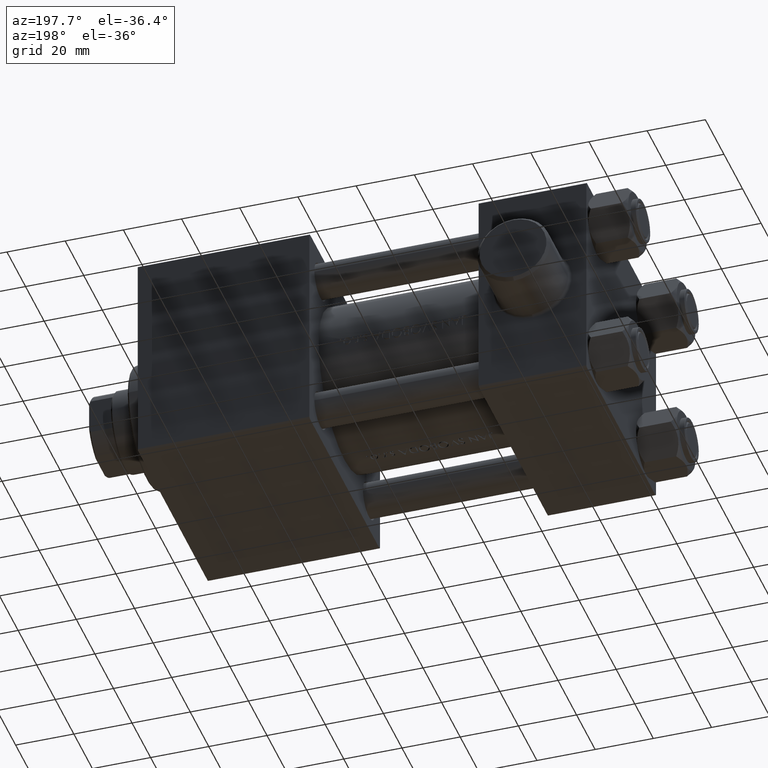
[diagram: clean part render]
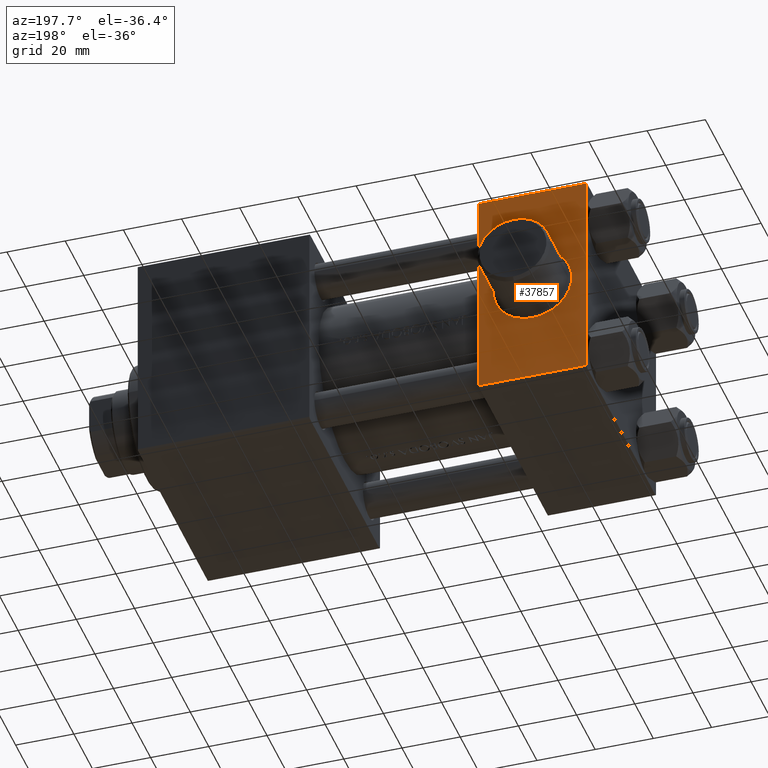
[diagram: same view with one face highlighted and labeled with its STEP entity id]
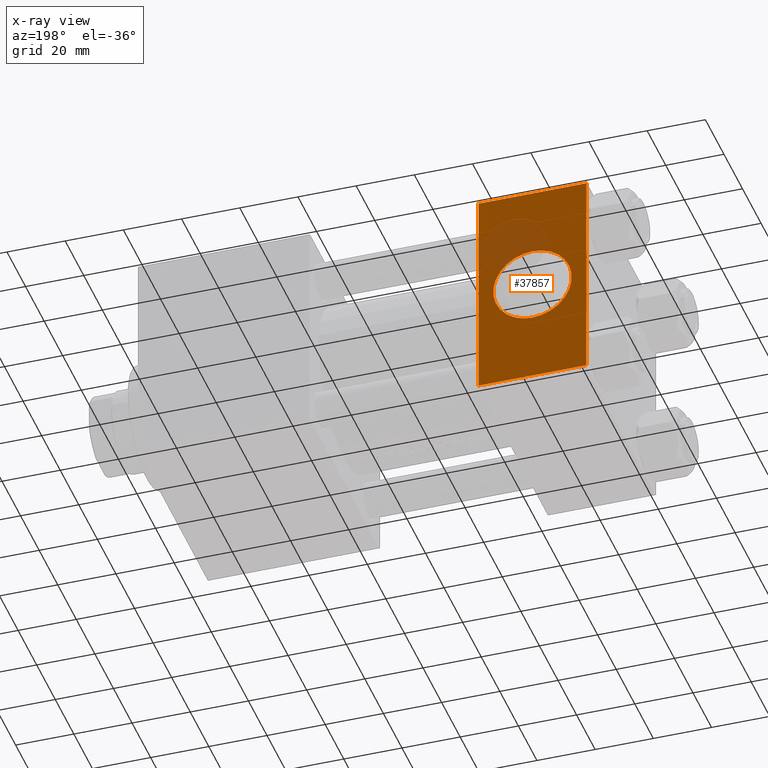
[diagram: x-ray of the same camera — body ghosted, the highlighted face saturated]
A machine part, auxiliary view. The second image highlights one B-rep face of the part: STEP entity #37857.
The next image is the same camera in x-ray: the body ghosted, the highlighted face saturated — about 15% of this face is hidden behind the body in this view.
In plain terms, the highlighted planar face has unit normal (0, 1, 0).
Its self-contained STEP definition (entity closure, byte-faithful):
#1323 = VERTEX_POINT ( 'NONE', #14348 ) ;
#1332 = VERTEX_POINT ( 'NONE', #35418 ) ;
#4882 = CARTESIAN_POINT ( 'NONE',  ( 18.50000000000000000, 37.49999999999999289, -13.50000000000000533 ) ) ;
#4954 = PLANE ( 'NONE',  #22498 ) ;
#6282 = ORIENTED_EDGE ( 'NONE', *, *, #19614, .F. ) ;
#6420 = VERTEX_POINT ( 'NONE', #22360 ) ;
#7531 = CIRCLE ( 'NONE', #41920, 13.50000000000000178 ) ;
#7551 = DIRECTION ( 'NONE',  ( -0.000000000000000000, 1.000000000000000000, 0.000000000000000000 ) ) ;
#7646 = ORIENTED_EDGE ( 'NONE', *, *, #16515, .T. ) ;
#7818 = LINE ( 'NONE', #23003, #35475 ) ;
#8022 = CARTESIAN_POINT ( 'NONE',  ( 37.00000000000000000, 37.49999999999999289, 37.50000000000000000 ) ) ;
#9030 = EDGE_LOOP ( 'NONE', ( #7646, #20046 ) ) ;
#10692 = LINE ( 'NONE', #15118, #10819 ) ;
#10819 = VECTOR ( 'NONE', #29843, 1000.000000000000000 ) ;
#12234 = FACE_BOUND ( 'NONE', #9030, .T. ) ;
#12878 = EDGE_CURVE ( 'NONE', #26622, #1332, #10692, .T. ) ;
#13143 = EDGE_CURVE ( 'NONE', #1332, #38547, #7818, .T. ) ;
#14348 = CARTESIAN_POINT ( 'NONE',  ( 18.50000000000000000, 37.49999999999999289, 13.49999999999999822 ) ) ;
#14665 = CIRCLE ( 'NONE', #28076, 13.50000000000000178 ) ;
#15118 = CARTESIAN_POINT ( 'NONE',  ( 37.00000000000000000, 37.49999999999999289, 37.00000000000000000 ) ) ;
#16515 = EDGE_CURVE ( 'NONE', #1323, #20595, #14665, .T. ) ;
#18340 = CARTESIAN_POINT ( 'NONE',  ( 0.000000000000000000, 37.49999999999999289, 37.00000000000000000 ) ) ;
#18546 = DIRECTION ( 'NONE',  ( 0.000000000000000000, -0.000000000000000000, 1.000000000000000000 ) ) ;
#19614 = EDGE_CURVE ( 'NONE', #26622, #6420, #32504, .T. ) ;
#20046 = ORIENTED_EDGE ( 'NONE', *, *, #36640, .T. ) ;
#20595 = VERTEX_POINT ( 'NONE', #4882 ) ;
#21147 = DIRECTION ( 'NONE',  ( 0.000000000000000000, 0.000000000000000000, 1.000000000000000000 ) ) ;
#21509 = DIRECTION ( 'NONE',  ( 0.000000000000000000, 0.000000000000000000, -1.000000000000000000 ) ) ;
#21624 = EDGE_CURVE ( 'NONE', #38547, #6420, #26331, .T. ) ;
#22360 = CARTESIAN_POINT ( 'NONE',  ( 0.000000000000000000, 37.49999999999999289, -36.99999999999998579 ) ) ;
#22498 = AXIS2_PLACEMENT_3D ( 'NONE', #8022, #7551, #18546 ) ;
#23003 = CARTESIAN_POINT ( 'NONE',  ( 37.00000000000000000, 37.49999999999999289, 37.50000000000000000 ) ) ;
#24206 = CARTESIAN_POINT ( 'NONE',  ( 18.50000000000000000, 37.49999999999999289, -3.556183125752453755E-15 ) ) ;
#26286 = DIRECTION ( 'NONE',  ( 0.000000000000000000, 0.000000000000000000, -1.000000000000000000 ) ) ;
#26331 = LINE ( 'NONE', #36647, #43962 ) ;
#26622 = VERTEX_POINT ( 'NONE', #18340 ) ;
#28076 = AXIS2_PLACEMENT_3D ( 'NONE', #24206, #32141, #21147 ) ;
#28970 = DIRECTION ( 'NONE',  ( 0.000000000000000000, -1.000000000000000000, -0.000000000000000000 ) ) ;
#29338 = ORIENTED_EDGE ( 'NONE', *, *, #12878, .T. ) ;
#29456 = CARTESIAN_POINT ( 'NONE',  ( 0.000000000000000000, 37.49999999999999289, 37.50000000000000000 ) ) ;
#29843 = DIRECTION ( 'NONE',  ( 1.000000000000000000, 0.000000000000000000, 0.000000000000000000 ) ) ;
#32141 = DIRECTION ( 'NONE',  ( 0.000000000000000000, -1.000000000000000000, -0.000000000000000000 ) ) ;
#32228 = ORIENTED_EDGE ( 'NONE', *, *, #13143, .T. ) ;
#32504 = LINE ( 'NONE', #29456, #32685 ) ;
#32685 = VECTOR ( 'NONE', #21509, 1000.000000000000000 ) ;
#35418 = CARTESIAN_POINT ( 'NONE',  ( 37.00000000000000000, 37.49999999999999289, 37.00000000000000000 ) ) ;
#35475 = VECTOR ( 'NONE', #26286, 1000.000000000000000 ) ;
#36001 = CARTESIAN_POINT ( 'NONE',  ( 18.50000000000000000, 37.49999999999999289, -3.556183125752453755E-15 ) ) ;
#36193 = EDGE_LOOP ( 'NONE', ( #32228, #41391, #6282, #29338 ) ) ;
#36640 = EDGE_CURVE ( 'NONE', #20595, #1323, #7531, .T. ) ;
#36647 = CARTESIAN_POINT ( 'NONE',  ( 37.00000000000000000, 37.49999999999999289, -36.99999999999998579 ) ) ;
#37181 = CARTESIAN_POINT ( 'NONE',  ( 37.00000000000000000, 37.49999999999999289, -36.99999999999998579 ) ) ;
#37857 = ADVANCED_FACE ( 'NONE', ( #12234, #39608 ), #4954, .T. ) ;
#38547 = VERTEX_POINT ( 'NONE', #37181 ) ;
#39608 = FACE_OUTER_BOUND ( 'NONE', #36193, .T. ) ;
#40381 = DIRECTION ( 'NONE',  ( -1.000000000000000000, 0.000000000000000000, 0.000000000000000000 ) ) ;
#41391 = ORIENTED_EDGE ( 'NONE', *, *, #21624, .T. ) ;
#41920 = AXIS2_PLACEMENT_3D ( 'NONE', #36001, #28970, #43261 ) ;
#43261 = DIRECTION ( 'NONE',  ( 0.000000000000000000, 0.000000000000000000, 1.000000000000000000 ) ) ;
#43962 = VECTOR ( 'NONE', #40381, 1000.000000000000000 ) ;